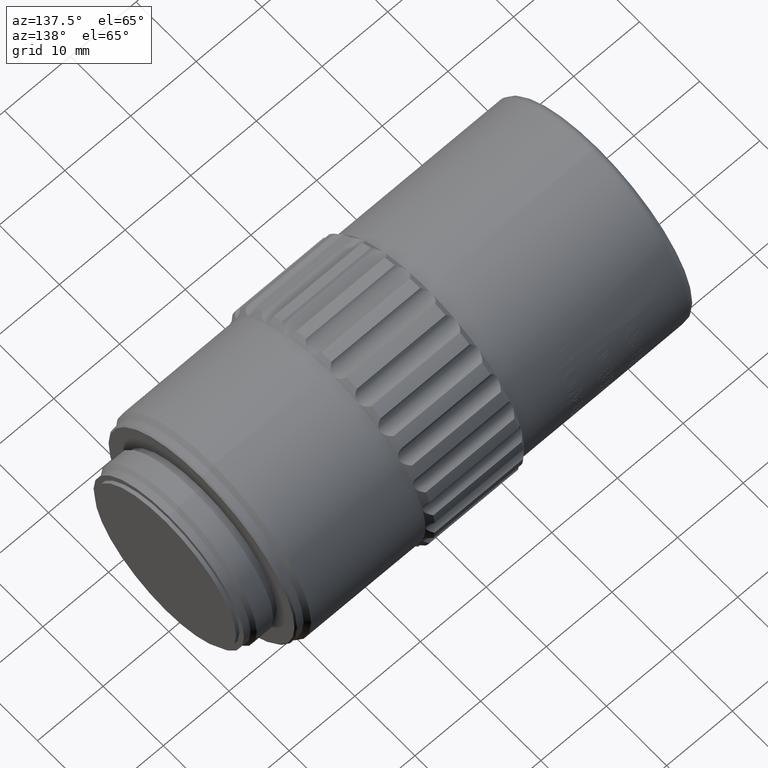
[diagram: clean part render]
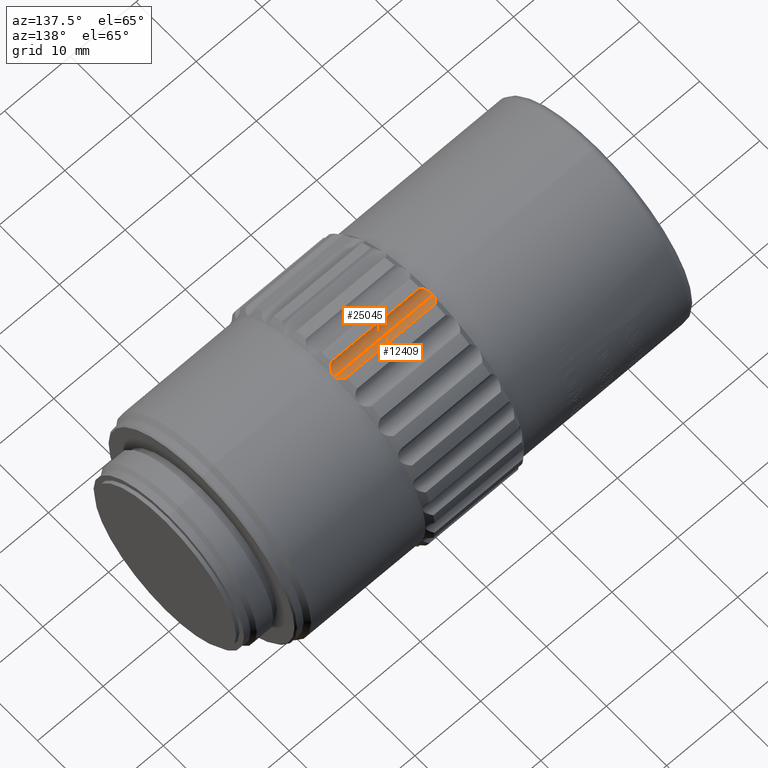
[diagram: same view with one multi-face feature highlighted, each face labeled with its STEP entity id]
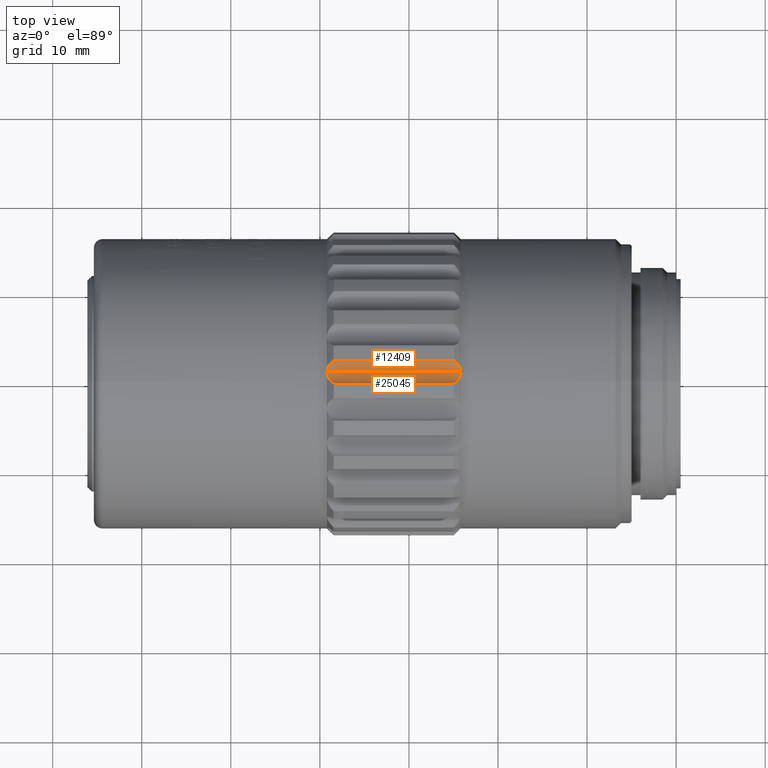
[diagram: same view with one multi-face feature highlighted, each face labeled with its STEP entity id]
A machine part, auxiliary view. The highlighted faces form ONE feature: a constant-radius fillet chain: 2 tangent blend faces with common blend radius 1.5 mm. The faces share edges in the B-rep.
A second angle (top view) of the same feature is appended — it is thin or edge-on in the first view.
Their STEP definitions:
[1] entity #12409 (Cylinder):
#24 = CARTESIAN_POINT ( 'NONE',  ( 75.78747189636224846, 1.250085157238093103, 16.21497442960182767 ) ) ;
#983 = EDGE_CURVE ( 'NONE', #21546, #16246, #20180, .T. ) ;
#1514 = ORIENTED_EDGE ( 'NONE', *, *, #24979, .T. ) ;
#3018 = DIRECTION ( 'NONE',  ( 1.000000000000000000, -0.000000000000000000, -0.000000000000000000 ) ) ;
#3262 = CARTESIAN_POINT ( 'NONE',  ( 60.93359294436526596, 1.635132937374185635, 16.30224541897325707 ) ) ;
#3363 = CARTESIAN_POINT ( 'NONE',  ( 75.39127970304789983, 2.044279783070902301, 16.53295963759913789 ) ) ;
#4420 = VERTEX_POINT ( 'NONE', #9915 ) ;
#4778 = LINE ( 'NONE', #17315, #6709 ) ;
#4879 = CARTESIAN_POINT ( 'NONE',  ( 61.13179515052513580, 1.954345744467922419, 16.46650060623727896 ) ) ;
#5032 = CARTESIAN_POINT ( 'NONE',  ( 60.80323280800445929, 1.114531721645334317, 16.21497442960178148 ) ) ;
#5501 = CARTESIAN_POINT ( 'NONE',  ( 60.81259503974371228, 1.251061287475049744, 16.21497442960182767 ) ) ;
#5511 = FACE_OUTER_BOUND ( 'NONE', #17624, .T. ) ;
#6709 = VECTOR ( 'NONE', #17478, 1000.000000000000000 ) ;
#9596 = CARTESIAN_POINT ( 'NONE',  ( 75.79676719199547108, 1.114531721645318330, 16.21497442960182411 ) ) ;
#9654 = CARTESIAN_POINT ( 'NONE',  ( 61.37272819229142584, 2.203588342165563763, 16.67792609246564695 ) ) ;
#9743 = CARTESIAN_POINT ( 'NONE',  ( 75.46946505659767013, 1.952639168972323702, 16.46543058849484353 ) ) ;
#9901 = CARTESIAN_POINT ( 'NONE',  ( 75.75754405154438587, 1.385045736249746584, 16.23392708235835613 ) ) ;
#9915 = CARTESIAN_POINT ( 'NONE',  ( 75.79676719199547108, 1.114531721645318330, 16.21497442960182411 ) ) ;
#9975 = CARTESIAN_POINT ( 'NONE',  ( 61.54999999999999716, 2.332355643600821260, 16.83924336636784602 ) ) ;
#10373 = CARTESIAN_POINT ( 'NONE',  ( 75.04999999999999716, 2.332355643600819040, 16.83924336636784247 ) ) ;
#10756 = DIRECTION ( 'NONE',  ( 1.000000000000000000, -0.000000000000000000, -0.000000000000000000 ) ) ;
#11110 = ORIENTED_EDGE ( 'NONE', *, *, #17130, .T. ) ;
#12034 = CARTESIAN_POINT ( 'NONE',  ( 61.54999999999999716, 2.332355643600821260, 16.83924336636784602 ) ) ;
#12409 = ADVANCED_FACE ( 'NONE', ( #5511 ), #25060, .F. ) ;
#14572 = CARTESIAN_POINT ( 'NONE',  ( 60.99329763570086271, 1.748410522913042220, 16.35036014495603141 ) ) ;
#15527 = DIRECTION ( 'NONE',  ( 0.000000000000000000, 0.000000000000000000, -1.000000000000000000 ) ) ;
#16246 = VERTEX_POINT ( 'NONE', #29072 ) ;
#16955 = CARTESIAN_POINT ( 'NONE',  ( 61.20930138300906265, 2.044885831452567526, 16.53346911576668532 ) ) ;
#17130 = EDGE_CURVE ( 'NONE', #21546, #25244, #30416, .T. ) ;
#17315 = CARTESIAN_POINT ( 'NONE',  ( 57.49999999999997868, 1.114531721645318330, 16.21497442960182411 ) ) ;
#17478 = DIRECTION ( 'NONE',  ( 1.000000000000000000, -0.000000000000000000, -0.000000000000000000 ) ) ;
#17624 = EDGE_LOOP ( 'NONE', ( #11110, #25955, #1514, #26490 ) ) ;
#17995 = CARTESIAN_POINT ( 'NONE',  ( 75.22735107995569592, 2.203552953841636519, 16.67785188039976063 ) ) ;
#20180 = LINE ( 'NONE', #24804, #20291 ) ;
#20291 = VECTOR ( 'NONE', #3018, 1000.000000000000000 ) ;
#21546 = VERTEX_POINT ( 'NONE', #9975 ) ;
#21903 = CARTESIAN_POINT ( 'NONE',  ( 60.80323280800445929, 1.114531721645334317, 16.21497442960178148 ) ) ;
#22832 = CARTESIAN_POINT ( 'NONE',  ( 57.49999999999997868, 1.114531721645318330, 17.71497442960182056 ) ) ;
#23249 = B_SPLINE_CURVE_WITH_KNOTS ( 'NONE', 3,
 ( #9596, #24, #9901, #29131, #29287, #9743, #3363, #17995, #27688, #10373 ),
 .UNSPECIFIED., .F., .F.,
 ( 4, 2, 2, 2, 4 ),
 ( 0.001805724346206589526, 0.002209709132582814324, 0.002613693918959038905, 0.003017678705335263487, 0.003421663491711488068 ),
 .UNSPECIFIED. ) ;
#24578 = CARTESIAN_POINT ( 'NONE',  ( 60.84235201877621080, 1.384859916387808809, 16.23384258185253515 ) ) ;
#24804 = CARTESIAN_POINT ( 'NONE',  ( 78.99999999999998579, 2.332355643600821260, 16.83924336636784602 ) ) ;
#24979 = EDGE_CURVE ( 'NONE', #4420, #16246, #23249, .T. ) ;
#25060 = CYLINDRICAL_SURFACE ( 'NONE', #31099, 1.499999999999997780 ) ;
#25244 = VERTEX_POINT ( 'NONE', #21903 ) ;
#25955 = ORIENTED_EDGE ( 'NONE', *, *, #28006, .T. ) ;
#26490 = ORIENTED_EDGE ( 'NONE', *, *, #983, .F. ) ;
#27688 = CARTESIAN_POINT ( 'NONE',  ( 75.14063934899309061, 2.272515210441276690, 16.75602705252286739 ) ) ;
#28006 = EDGE_CURVE ( 'NONE', #25244, #4420, #4778, .T. ) ;
#29072 = CARTESIAN_POINT ( 'NONE',  ( 75.04999999999999716, 2.332355643600819040, 16.83924336636784247 ) ) ;
#29131 = CARTESIAN_POINT ( 'NONE',  ( 75.66677616274074580, 1.634219448813312159, 16.30196213556284590 ) ) ;
#29287 = CARTESIAN_POINT ( 'NONE',  ( 75.60685100569511974, 1.748020525377441681, 16.35024887489882062 ) ) ;
#30416 = B_SPLINE_CURVE_WITH_KNOTS ( 'NONE', 3,
 ( #12034, #31435, #9654, #16955, #4879, #14572, #3262, #24578, #5501, #5032 ),
 .UNSPECIFIED., .F., .F.,
 ( 4, 2, 2, 2, 4 ),
 ( 2.974564130112565677E-07, 0.0004049100355180058246, 0.0008095226146230004088, 0.001214135193727995101, 0.001618747772832989686 ),
 .UNSPECIFIED. ) ;
#31099 = AXIS2_PLACEMENT_3D ( 'NONE', #22832, #10756, #15527 ) ;
#31435 = CARTESIAN_POINT ( 'NONE',  ( 61.45932028309083250, 2.272488559393920582, 16.75598999059327099 ) ) ;
[2] entity #25045 (Cylinder):
#41 = CARTESIAN_POINT ( 'NONE',  ( 61.54999999999999716, -0.2034475008270133778, 16.99878257742028609 ) ) ;
#344 = CARTESIAN_POINT ( 'NONE',  ( 60.79999999999997584, 1.020345942351347901, 16.21793433695941644 ) ) ;
#594 = DIRECTION ( 'NONE',  ( 0.000000000000000000, 0.000000000000000000, -1.000000000000000000 ) ) ;
#613 = VERTEX_POINT ( 'NONE', #12174 ) ;
#1069 = CARTESIAN_POINT ( 'NONE',  ( 75.79892128698416798, 1.083118522126801819, 16.21497442960182411 ) ) ;
#1332 = CARTESIAN_POINT ( 'NONE',  ( 60.96807020366860286, 0.3565564038565917082, 16.41452559968088920 ) ) ;
#2288 = ORIENTED_EDGE ( 'NONE', *, *, #15404, .T. ) ;
#2291 = CARTESIAN_POINT ( 'NONE',  ( 75.33892747867722051, -7.639500844046806979E-17, 16.71107252132277310 ) ) ;
#2802 = B_SPLINE_CURVE_WITH_KNOTS ( 'NONE', 3,
 ( #24045, #7192, #4969, #4347 ),
 .UNSPECIFIED., .F., .F.,
 ( 4, 4 ),
 ( 2.974564142999774394E-07, 0.0004547065688049330384 ),
 .UNSPECIFIED. ) ;
#2981 = B_SPLINE_CURVE_WITH_KNOTS ( 'NONE', 3,
 ( #8507, #25511, #18351, #16863, #1332, #28047, #26256, #15974, #9568, #25671 ),
 .UNSPECIFIED., .F., .F.,
 ( 4, 2, 2, 2, 4 ),
 ( 0.001712104773662622131, 0.002139494453174499260, 0.002566884132686376822, 0.002994273812198253951, 0.003421663491710131080 ),
 .UNSPECIFIED. ) ;
#3346 = ORIENTED_EDGE ( 'NONE', *, *, #16373, .T. ) ;
#4347 = CARTESIAN_POINT ( 'NONE',  ( 75.33892747867722051, -7.639500844046806979E-17, 16.71107252132277310 ) ) ;
#4420 = VERTEX_POINT ( 'NONE', #9915 ) ;
#4778 = LINE ( 'NONE', #17315, #6709 ) ;
#4969 = CARTESIAN_POINT ( 'NONE',  ( 75.24855018731646794, -0.08140632832614147496, 16.80144981268353277 ) ) ;
#5544 = FACE_OUTER_BOUND ( 'NONE', #11256, .T. ) ;
#6709 = VECTOR ( 'NONE', #17478, 1000.000000000000000 ) ;
#6712 = VERTEX_POINT ( 'NONE', #23284 ) ;
#7192 = CARTESIAN_POINT ( 'NONE',  ( 75.15183986311959075, -0.1484612158122476933, 16.89759351620763184 ) ) ;
#7781 = VECTOR ( 'NONE', #10227, 1000.000000000000000 ) ;
#8507 = CARTESIAN_POINT ( 'NONE',  ( 60.79999999999997584, 1.020345942351347901, 16.21793433695941644 ) ) ;
#9038 = EDGE_CURVE ( 'NONE', #11100, #11578, #2981, .T. ) ;
#9568 = CARTESIAN_POINT ( 'NONE',  ( 61.45410945257417268, -0.1516734232756064282, 16.90350481313468123 ) ) ;
#9772 = CARTESIAN_POINT ( 'NONE',  ( 75.70559855696562579, 0.5151025131191748763, 16.33651756515537201 ) ) ;
#9912 = CARTESIAN_POINT ( 'NONE',  ( 60.79999999999998295, 1.051635249291818397, 16.21596578062465710 ) ) ;
#9915 = CARTESIAN_POINT ( 'NONE',  ( 75.79676719199547108, 1.114531721645318330, 16.21497442960182411 ) ) ;
#10045 = VERTEX_POINT ( 'NONE', #27418 ) ;
#10227 = DIRECTION ( 'NONE',  ( -1.000000000000000000, 0.000000000000000000, 0.000000000000000000 ) ) ;
#10630 = ORIENTED_EDGE ( 'NONE', *, *, #18949, .T. ) ;
#11100 = VERTEX_POINT ( 'NONE', #344 ) ;
#11256 = EDGE_LOOP ( 'NONE', ( #14318, #2288, #22261, #19955, #21214, #10630, #3346 ) ) ;
#11578 = VERTEX_POINT ( 'NONE', #41 ) ;
#12003 = CARTESIAN_POINT ( 'NONE',  ( 75.57901140406855234, 0.2556270497065609160, 16.46993725055169477 ) ) ;
#12174 = CARTESIAN_POINT ( 'NONE',  ( 75.04999999999999716, -0.2034475008270112961, 16.99878257742028254 ) ) ;
#12608 = CARTESIAN_POINT ( 'NONE',  ( 60.80107264314216309, 1.083030005068390533, 16.21497442960182411 ) ) ;
#12957 = B_SPLINE_CURVE_WITH_KNOTS ( 'NONE', 3,
 ( #28104, #30182, #1069, #25243 ),
 .UNSPECIFIED., .F., .F.,
 ( 4, 4 ),
 ( 0.001712104773663950062, 0.001805724346206589526 ),
 .UNSPECIFIED. ) ;
#14318 = ORIENTED_EDGE ( 'NONE', *, *, #28006, .F. ) ;
#14541 = CARTESIAN_POINT ( 'NONE',  ( 75.78730721671666970, 0.8086059231707674044, 16.24288797924366534 ) ) ;
#15404 = EDGE_CURVE ( 'NONE', #25244, #11100, #24368, .T. ) ;
#15974 = CARTESIAN_POINT ( 'NONE',  ( 61.36260428610298590, -0.08908652875666761561, 16.81253700629952519 ) ) ;
#16373 = EDGE_CURVE ( 'NONE', #10045, #4420, #12957, .T. ) ;
#16634 = EDGE_CURVE ( 'NONE', #613, #11578, #26765, .T. ) ;
#16863 = CARTESIAN_POINT ( 'NONE',  ( 60.90771465717448052, 0.4745528223058233519, 16.35135719610054039 ) ) ;
#16909 = CARTESIAN_POINT ( 'NONE',  ( 78.99999999999998579, -0.2034475008270133778, 16.99878257742028609 ) ) ;
#17230 = CARTESIAN_POINT ( 'NONE',  ( 75.79999999999999716, 1.020345942351347679, 16.21793433695941289 ) ) ;
#17315 = CARTESIAN_POINT ( 'NONE',  ( 57.49999999999997868, 1.114531721645318330, 16.21497442960182411 ) ) ;
#17478 = DIRECTION ( 'NONE',  ( 1.000000000000000000, -0.000000000000000000, -0.000000000000000000 ) ) ;
#17535 = CARTESIAN_POINT ( 'NONE',  ( 60.80323280800445929, 1.114531721645334317, 16.21497442960178148 ) ) ;
#17622 = CYLINDRICAL_SURFACE ( 'NONE', #29961, 1.499999999999997780 ) ;
#18351 = CARTESIAN_POINT ( 'NONE',  ( 60.82354290380798290, 0.7339621588583594702, 16.25751370663821405 ) ) ;
#18949 = EDGE_CURVE ( 'NONE', #6712, #10045, #29135, .T. ) ;
#19680 = CARTESIAN_POINT ( 'NONE',  ( 57.49999999999997868, 1.114531721645318330, 17.71497442960182056 ) ) ;
#19955 = ORIENTED_EDGE ( 'NONE', *, *, #16634, .F. ) ;
#21214 = ORIENTED_EDGE ( 'NONE', *, *, #22043, .T. ) ;
#21698 = CARTESIAN_POINT ( 'NONE',  ( 75.74030808003600157, 0.6100761328194855837, 16.29858688715351533 ) ) ;
#21852 = CARTESIAN_POINT ( 'NONE',  ( 75.46396925360902230, 0.1126299718803285138, 16.58603074639096064 ) ) ;
#21903 = CARTESIAN_POINT ( 'NONE',  ( 60.80323280800445929, 1.114531721645334317, 16.21497442960178148 ) ) ;
#22043 = EDGE_CURVE ( 'NONE', #613, #6712, #2802, .T. ) ;
#22261 = ORIENTED_EDGE ( 'NONE', *, *, #9038, .T. ) ;
#22389 = DIRECTION ( 'NONE',  ( 1.000000000000000000, -0.000000000000000000, -0.000000000000000000 ) ) ;
#23284 = CARTESIAN_POINT ( 'NONE',  ( 75.33892747867722051, -7.639500844046806979E-17, 16.71107252132277310 ) ) ;
#24045 = CARTESIAN_POINT ( 'NONE',  ( 75.04999999999999716, -0.2034475008270112961, 16.99878257742028254 ) ) ;
#24224 = CARTESIAN_POINT ( 'NONE',  ( 75.80000000000001137, 0.9149893059218396907, 16.22456281468333827 ) ) ;
#24368 = B_SPLINE_CURVE_WITH_KNOTS ( 'NONE', 3,
 ( #17535, #12608, #9912, #29452 ),
 .UNSPECIFIED., .F., .F.,
 ( 4, 4 ),
 ( 0.001618747772832989686, 0.001712104773662622131 ),
 .UNSPECIFIED. ) ;
#25045 = ADVANCED_FACE ( 'NONE', ( #5544 ), #17622, .F. ) ;
#25243 = CARTESIAN_POINT ( 'NONE',  ( 75.79676719199547108, 1.114531721645318330, 16.21497442960182411 ) ) ;
#25244 = VERTEX_POINT ( 'NONE', #21903 ) ;
#25511 = CARTESIAN_POINT ( 'NONE',  ( 60.79999999999998295, 0.8771030495142034811, 16.22694641589871267 ) ) ;
#25671 = CARTESIAN_POINT ( 'NONE',  ( 61.54999999999999716, -0.2034475008270133778, 16.99878257742028609 ) ) ;
#26256 = CARTESIAN_POINT ( 'NONE',  ( 61.19037096797065090, 0.06170784654005809916, 16.64042704410150719 ) ) ;
#26765 = LINE ( 'NONE', #16909, #7781 ) ;
#27418 = CARTESIAN_POINT ( 'NONE',  ( 75.79999999999999716, 1.020345942351347679, 16.21793433695941289 ) ) ;
#28006 = EDGE_CURVE ( 'NONE', #25244, #4420, #4778, .T. ) ;
#28047 = CARTESIAN_POINT ( 'NONE',  ( 61.10863794535134019, 0.1513437895824261692, 16.55827103237845677 ) ) ;
#28104 = CARTESIAN_POINT ( 'NONE',  ( 75.79999999999999716, 1.020345942351347679, 16.21793433695941289 ) ) ;
#29135 = B_SPLINE_CURVE_WITH_KNOTS ( 'NONE', 3,
 ( #2291, #21852, #12003, #9772, #21698, #14541, #24224, #17230 ),
 .UNSPECIFIED., .F., .F.,
 ( 4, 2, 2, 4 ),
 ( 0.0004547065688049330384, 0.001083405671234441469, 0.001397755222449195874, 0.001712104773663950062 ),
 .UNSPECIFIED. ) ;
#29452 = CARTESIAN_POINT ( 'NONE',  ( 60.79999999999997584, 1.020345942351347901, 16.21793433695941644 ) ) ;
#29961 = AXIS2_PLACEMENT_3D ( 'NONE', #19680, #22389, #594 ) ;
#30182 = CARTESIAN_POINT ( 'NONE',  ( 75.79999999999999716, 1.051723252193035307, 16.21596024395140745 ) ) ;